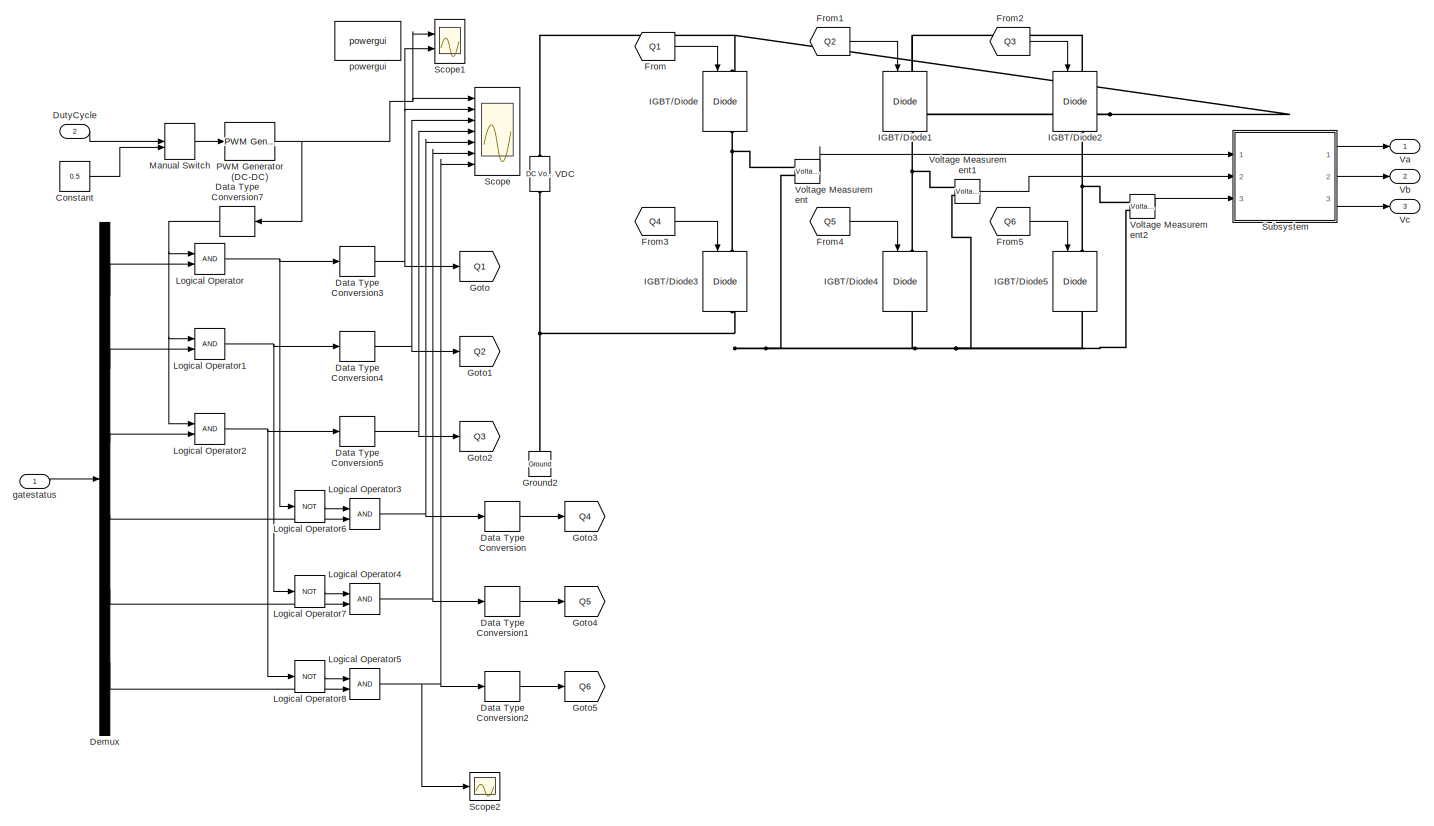
[diagram: root canvas - part 1/2, most of the canvas]
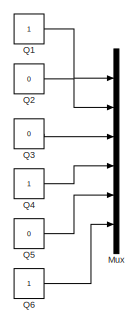
[diagram: root canvas - part 2/2, bottom left region]
MODEL slx_e1e861e88e4e
KIND model
CONFIG AbsTol = auto
CONFIG FixedStep = auto
CONFIG MaxStep = auto
CONFIG MinStep = auto
CONFIG RelTol = 1e-3
CONFIG SampleTimeConstraint = Unconstrained
CONFIG Solver = VariableStepAuto
CONFIG SolverMode = Auto
CONFIG SolverName = VariableStepAuto
CONFIG StartTime = 0.0
CONFIG StopTime = inf
BLOCK [Constant] Constant
  Value = 0.5
BLOCK [DataTypeConversion] Data Type Conversion
  OutDataTypeStr = double
  RndMeth = Floor
  SaturateOnIntegerOverflow = off
BLOCK [DataTypeConversion] Data Type Conversion1
  OutDataTypeStr = double
  RndMeth = Floor
  SaturateOnIntegerOverflow = off
BLOCK [DataTypeConversion] Data Type Conversion2
  OutDataTypeStr = double
  RndMeth = Floor
  SaturateOnIntegerOverflow = off
BLOCK [DataTypeConversion] Data Type Conversion3
  OutDataTypeStr = double
  RndMeth = Floor
  SaturateOnIntegerOverflow = off
BLOCK [DataTypeConversion] Data Type Conversion4
  OutDataTypeStr = double
  RndMeth = Floor
  SaturateOnIntegerOverflow = off
BLOCK [DataTypeConversion] Data Type Conversion5
  OutDataTypeStr = double
  RndMeth = Floor
  SaturateOnIntegerOverflow = off
BLOCK [DataTypeConversion] Data Type Conversion7
  OutDataTypeStr = boolean
  RndMeth = Floor
  SaturateOnIntegerOverflow = off
BLOCK [Demux] Demux
  DisplayOption = bar
  Outputs = 6
  Ports = [1, 6]
BLOCK [Inport] DutyCycle
  IconDisplay = Port number
  Port = 2
BLOCK [From] From
  GotoTag = Q1
BLOCK [From] From1
  GotoTag = Q2
BLOCK [From] From2
  GotoTag = Q3
BLOCK [From] From3
  GotoTag = Q4
BLOCK [From] From4
  GotoTag = Q5
BLOCK [From] From5
  GotoTag = Q6
BLOCK [Goto] Goto
  GotoTag = Q1
BLOCK [Goto] Goto1
  GotoTag = Q2
BLOCK [Goto] Goto2
  GotoTag = Q3
BLOCK [Goto] Goto3
  GotoTag = Q4
BLOCK [Goto] Goto4
  GotoTag = Q5
BLOCK [Goto] Goto5
  GotoTag = Q6
BLOCK [Reference] Ground2  REF=powerlib/Elements/Ground
  Ports = [0, 0, 0, 0, 0, 1]
  SourceBlock = powerlib/Elements/Ground
  SourceType = Ground
BLOCK [Reference] IGBT//Diode  REF=powerlib/Power
Electronics/IGBT//Diode
  Ports = [1, 1, 0, 0, 0, 1, 1]
  SourceBlock = powerlib/Power\nElectronics/IGBT//Diode
  SourceType = IGBT/Diode
BLOCK [Reference] IGBT//Diode1  REF=powerlib/Power
Electronics/IGBT//Diode
  Ports = [1, 1, 0, 0, 0, 1, 1]
  SourceBlock = powerlib/Power\nElectronics/IGBT//Diode
  SourceType = IGBT/Diode
BLOCK [Reference] IGBT//Diode2  REF=powerlib/Power
Electronics/IGBT//Diode
  Ports = [1, 1, 0, 0, 0, 1, 1]
  SourceBlock = powerlib/Power\nElectronics/IGBT//Diode
  SourceType = IGBT/Diode
BLOCK [Reference] IGBT//Diode3  REF=powerlib/Power
Electronics/IGBT//Diode
  Ports = [1, 1, 0, 0, 0, 1, 1]
  SourceBlock = powerlib/Power\nElectronics/IGBT//Diode
  SourceType = IGBT/Diode
BLOCK [Reference] IGBT//Diode4  REF=powerlib/Power
Electronics/IGBT//Diode
  Ports = [1, 1, 0, 0, 0, 1, 1]
  SourceBlock = powerlib/Power\nElectronics/IGBT//Diode
  SourceType = IGBT/Diode
BLOCK [Reference] IGBT//Diode5  REF=powerlib/Power
Electronics/IGBT//Diode
  Ports = [1, 1, 0, 0, 0, 1, 1]
  SourceBlock = powerlib/Power\nElectronics/IGBT//Diode
  SourceType = IGBT/Diode
BLOCK [Logic] Logical Operator
  AllPortsSameDT = off
  OutDataTypeStr = boolean
  Ports = [2, 1]
BLOCK [Logic] Logical Operator1
  AllPortsSameDT = off
  OutDataTypeStr = boolean
  Ports = [2, 1]
BLOCK [Logic] Logical Operator2
  AllPortsSameDT = off
  OutDataTypeStr = boolean
  Ports = [2, 1]
BLOCK [Logic] Logical Operator3
  OutDataTypeStr = boolean
  Ports = [2, 1]
BLOCK [Logic] Logical Operator4
  OutDataTypeStr = boolean
  Ports = [2, 1]
BLOCK [Logic] Logical Operator5
  OutDataTypeStr = boolean
  Ports = [2, 1]
BLOCK [Logic] Logical Operator6
  Operator = NOT
  OutDataTypeStr = boolean
  Ports = [1, 1]
BLOCK [Logic] Logical Operator7
  Operator = NOT
  OutDataTypeStr = boolean
  Ports = [1, 1]
BLOCK [Logic] Logical Operator8
  Operator = NOT
  OutDataTypeStr = boolean
  Ports = [1, 1]
BLOCK [ManualSwitch] Manual Switch
BLOCK [Mux] Mux
  DisplayOption = bar
  Inputs = 6
  Ports = [6, 1]
BLOCK [Reference] PWM Generator (DC-DC)  REF=powerlib_meascontrol/Pulse & Signal
Generators/PWM Generator
(DC-DC)
  Ports = [1, 1]
  SourceBlock = powerlib_meascontrol/Pulse & Signal\nGenerators/PWM Generator\n(DC-DC)
  SourceType = PWM Generator (DC-DC)
BLOCK [Constant] Q1
BLOCK [Constant] Q2
  Value = 0
BLOCK [Constant] Q3
  Value = 0
BLOCK [Constant] Q4
BLOCK [Constant] Q5
  Value = 0
BLOCK [Constant] Q6
BLOCK [Scope] Scope
  NumInputPorts = 7
  Ports = [7]
  ScopeSpecificationString = Simulink.scopes.TimeScopeBlockCfg('CurrentConfiguration', extmgr.ConfigurationSet(extmgr.Configuration('Core','General UI',true),extmgr.Configuration('Core','Source UI',true),extmgr.Configuration('Sources','WiredSimulink',true),extmgr.Configuration('Visuals','Time Domain',true,'SerializedDisplays',{struct('MinYLimReal','-0.125','MaxYLimReal','1.125','YLabelReal','','MinYLimMag','0.00000','MaxYLimM...<+6295ch>
BLOCK [Scope] Scope1
  NumInputPorts = 2
  Ports = [2]
  ScopeSpecificationString = Simulink.scopes.TimeScopeBlockCfg('CurrentConfiguration', extmgr.ConfigurationSet(extmgr.Configuration('Core','General UI',true),extmgr.Configuration('Core','Source UI',true),extmgr.Configuration('Sources','WiredSimulink',true,'DataLoggingVariableName','ScopeData1'),extmgr.Configuration('Visuals','Time Domain',true,'SerializedDisplays',{struct('MinYLimReal','-0.125','MaxYLimReal','1.125','YLabelRe...<+1515ch>
BLOCK [Scope] Scope2
  Ports = [1]
  ScopeSpecificationString = Simulink.scopes.TimeScopeBlockCfg('CurrentConfiguration', extmgr.ConfigurationSet(extmgr.Configuration('Core','General UI',true),extmgr.Configuration('Core','Source UI',true),extmgr.Configuration('Sources','WiredSimulink',true,'DataLoggingVariableName','ScopeData1'),extmgr.Configuration('Visuals','Time Domain',true,'SerializedDisplays',{struct('MinYLimReal','-2','MaxYLimReal','2','YLabelReal','','...<+1482ch>
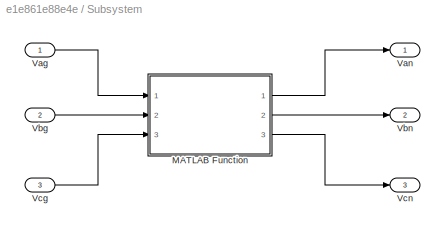
BLOCK [SubSystem] Subsystem
  Ports = [3, 3]
  RequestExecContextInheritance = off
  Variant = off
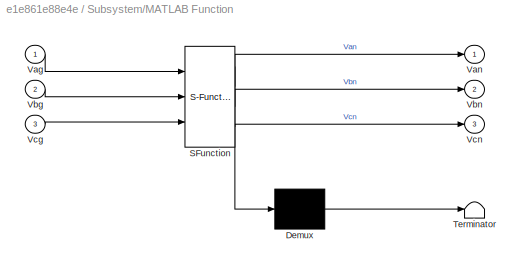
BLOCK [SubSystem] Subsystem/MATLAB Function
  ErrorFcn = Stateflow.Translate.translate
  PermitHierarchicalResolution = ExplicitOnly
  Ports = [3, 3]
  RequestExecContextInheritance = off
  SFBlockType = MATLAB Function
  TreatAsAtomicUnit = on
  Variant = off
BLOCK [Demux] Subsystem/MATLAB Function/ Demux 
  Outputs = 1
  Ports = [1, 1]
BLOCK [S-Function] Subsystem/MATLAB Function/ SFunction 
  EnableBusSupport = on
  FunctionName = sf_sfun
  PortCounts = [3 4]
  Ports = [3, 4]
  SFunctionDeploymentMode = off
  Tag = Stateflow S-Function PWM_module 2
BLOCK [Terminator] Subsystem/MATLAB Function/ Terminator 
BLOCK [Inport] Subsystem/MATLAB Function/Vag
  IconDisplay = Port number
BLOCK [Outport] Subsystem/MATLAB Function/Van
  IconDisplay = Port number
BLOCK [Inport] Subsystem/MATLAB Function/Vbg
  IconDisplay = Port number
  Port = 2
BLOCK [Outport] Subsystem/MATLAB Function/Vbn
  IconDisplay = Port number
  Port = 2
BLOCK [Inport] Subsystem/MATLAB Function/Vcg
  IconDisplay = Port number
  Port = 3
BLOCK [Outport] Subsystem/MATLAB Function/Vcn
  IconDisplay = Port number
  Port = 3
BLOCK [Inport] Subsystem/Vag
  IconDisplay = Port number
BLOCK [Outport] Subsystem/Van
  IconDisplay = Port number
BLOCK [Inport] Subsystem/Vbg
  IconDisplay = Port number
  Port = 2
BLOCK [Outport] Subsystem/Vbn
  IconDisplay = Port number
  Port = 2
BLOCK [Inport] Subsystem/Vcg
  IconDisplay = Port number
  Port = 3
BLOCK [Outport] Subsystem/Vcn
  IconDisplay = Port number
  Port = 3
BLOCK [Reference] VDC  REF=powerlib/Electrical
Sources/DC Voltage Source
  Ports = [0, 0, 0, 0, 0, 1, 1]
  SourceBlock = powerlib/Electrical\nSources/DC Voltage Source
  SourceType = DC Voltage Source
BLOCK [Outport] Va
  IconDisplay = Port number
BLOCK [Outport] Vb
  IconDisplay = Port number
  Port = 2
BLOCK [Outport] Vc
  IconDisplay = Port number
  Port = 3
BLOCK [Reference] Voltage Measurement  REF=powerlib/Measurements/Voltage Measurement
  Ports = [0, 1, 0, 0, 0, 2]
  SourceBlock = powerlib/Measurements/Voltage Measurement
  SourceType = Voltage Measurement
  UserDataPersistent = on
BLOCK [Reference] Voltage Measurement1  REF=powerlib/Measurements/Voltage Measurement
  Ports = [0, 1, 0, 0, 0, 2]
  SourceBlock = powerlib/Measurements/Voltage Measurement
  SourceType = Voltage Measurement
  UserDataPersistent = on
BLOCK [Reference] Voltage Measurement2  REF=powerlib/Measurements/Voltage Measurement
  Ports = [0, 1, 0, 0, 0, 2]
  SourceBlock = powerlib/Measurements/Voltage Measurement
  SourceType = Voltage Measurement
  UserDataPersistent = on
BLOCK [Inport] gatestatus
  IconDisplay = Port number
BLOCK [Reference] powergui  REF=powerlib/powergui
  Ports = []
  Priority = 1
  SourceBlock = powerlib/powergui
  SourceType = PSB option menu block
  UserDataPersistent = on
LINE Constant:1 -> Manual Switch:2
LINE Data Type Conversion1:1 -> Goto4:1
LINE Data Type Conversion2:1 -> Goto5:1
NET Data Type Conversion3:1 -> Goto:1, Scope1:2, Scope:2
NET Data Type Conversion4:1 -> Goto1:1, Scope:3
NET Data Type Conversion5:1 -> Goto2:1, Scope:4
NET Data Type Conversion7:1 -> Logical Operator1:1, Logical Operator2:1, Logical Operator:1
LINE Data Type Conversion:1 -> Goto3:1
LINE Demux:1 -> Logical Operator:2
LINE Demux:2 -> Logical Operator1:2
LINE Demux:3 -> Logical Operator2:2
LINE Demux:4 -> Logical Operator3:2
LINE Demux:5 -> Logical Operator4:2
LINE Demux:6 -> Logical Operator5:2
LINE DutyCycle:1 -> Manual Switch:1
LINE From1:1 -> IGBT//Diode1:1
LINE From2:1 -> IGBT//Diode2:1
LINE From3:1 -> IGBT//Diode3:1
LINE From4:1 -> IGBT//Diode4:1
LINE From5:1 -> IGBT//Diode5:1
LINE From:1 -> IGBT//Diode:1
NET Logical Operator1:1 -> Data Type Conversion4:1, Logical Operator7:1
NET Logical Operator2:1 -> Data Type Conversion5:1, Logical Operator8:1
NET Logical Operator3:1 -> Data Type Conversion:1, Scope:5
NET Logical Operator4:1 -> Data Type Conversion1:1, Scope:6
NET Logical Operator5:1 -> Data Type Conversion2:1, Scope2:1, Scope:7
LINE Logical Operator6:1 -> Logical Operator3:1
LINE Logical Operator7:1 -> Logical Operator4:1
LINE Logical Operator8:1 -> Logical Operator5:1
NET Logical Operator:1 -> Data Type Conversion3:1, Logical Operator6:1
LINE Manual Switch:1 -> PWM Generator (DC-DC):1
NET PWM Generator (DC-DC):1 -> Data Type Conversion7:1, Scope1:1, Scope:1
LINE Q1:1 -> Mux:1
LINE Q2:1 -> Mux:2
LINE Q3:1 -> Mux:3
LINE Q4:1 -> Mux:4
LINE Q5:1 -> Mux:5
LINE Q6:1 -> Mux:6
LINE Subsystem/MATLAB Function:1 -> Subsystem/Van:1
LINE Subsystem/MATLAB Function:2 -> Subsystem/Vbn:1
LINE Subsystem/MATLAB Function:3 -> Subsystem/Vcn:1
LINE Subsystem/Vag:1 -> Subsystem/MATLAB Function:1
LINE Subsystem/Vbg:1 -> Subsystem/MATLAB Function:2
LINE Subsystem/Vcg:1 -> Subsystem/MATLAB Function:3
LINE Subsystem:1 -> Va:1
LINE Subsystem:2 -> Vb:1
LINE Subsystem:3 -> Vc:1
LINE Voltage Measurement1:1 -> Subsystem:2
LINE Voltage Measurement2:1 -> Subsystem:3
LINE Voltage Measurement:1 -> Subsystem:1
LINE gatestatus:1 -> Demux:1
PNET net1: Ground2:LConn1 -- IGBT//Diode3:RConn1 -- IGBT//Diode4:RConn1 -- IGBT//Diode5:RConn1 -- VDC:LConn1 -- Voltage Measurement1:LConn2 -- Voltage Measurement2:LConn2 -- Voltage Measurement:LConn2
PNET net2: IGBT//Diode1:LConn1 -- IGBT//Diode2:LConn1 -- IGBT//Diode:LConn1 -- VDC:RConn1
PNET net3: IGBT//Diode1:RConn1 -- IGBT//Diode4:LConn1 -- Voltage Measurement1:LConn1
PNET net4: IGBT//Diode2:RConn1 -- IGBT//Diode5:LConn1 -- Voltage Measurement2:LConn1
PNET net5: IGBT//Diode3:LConn1 -- IGBT//Diode:RConn1 -- Voltage Measurement:LConn1
note: NET lines group one-source signal fan-out (src -> all destinations, sorted); 1:1 wires keep LINE; PNET lines group multi-terminal physical nets as a canonical sorted terminal list (undirected conserving connections); 2-terminal nets keep the pairwise PLINE form
CHART Subsystem/MATLAB Function states=1 transitions=1
  STATE_LABEL 'eML_blk_kernel()'
  STATE_LABEL 'SCRIPT:\nfunction [Van, Vbn, Vcn] = poletophase(Vag, Vbg, Vcg)\n%%#codegen\nTrans = [ 2/3 -1/3 -1/3 ; -1/3 2/3 -1/3 ; -1/3 -1/3 2/3];\n\nu = [Vag; Vbg; Vcg];\ny = Trans * u ;\nVan = y(1);\nVbn = y(2);\nVcn = y(3);\n\n%% according to the technical report written by Ti\n% http://www.ti.com/lit/an/spra498/spra498.pdf\n% Trans = [ 1/3 1/3 1/3 ; 1/3 1/3 1/3 ; 1/3 1/3 1/3];\n% \n% u = [Vag; Vbg; Vcg];\n% y = Trans * u ...<+169ch>'
